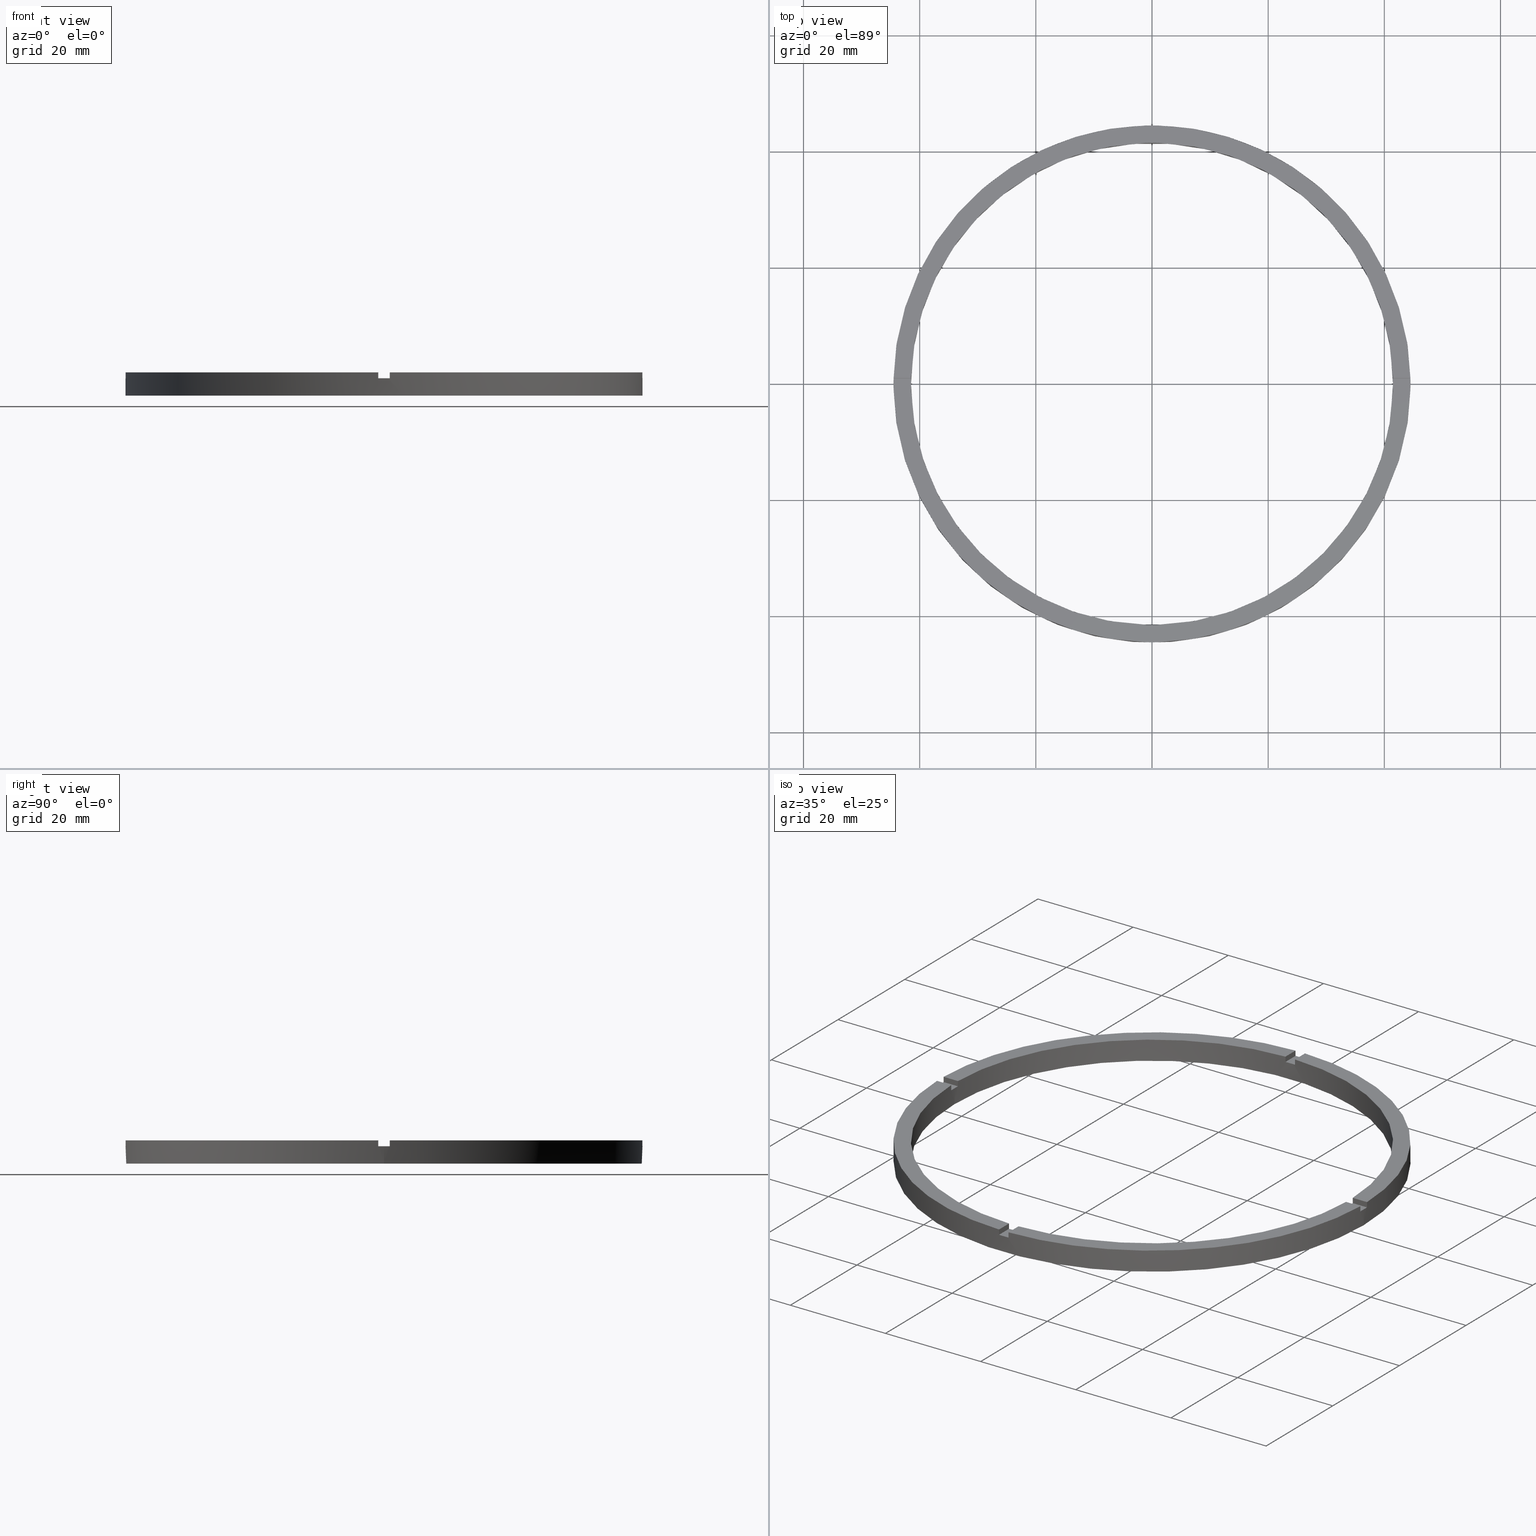
[diagram: canonical four-view strip — front | top / right | iso, engineering-drawing reading convention]
A machine part, canonical four-view strip (front | top / right | iso — engineering-drawing reading convention). The complete STEP part file that produces these views, byte-faithful:
ISO-10303-21;
HEADER;
FILE_DESCRIPTION (( 'STEP AP203' ),
    '1' );
FILE_NAME ('514182.step',
    '2024-12-26T02:45:34',
    ( 'MSI' ),
    ( '' ),
    'SwSTEP 2.0',
    'SolidWorks 2020',
    '' );
FILE_SCHEMA (( 'CONFIG_CONTROL_DESIGN' ));
ENDSEC;

DATA;
#1 = VERTEX_POINT ( 'NONE', #139 ) ;
#2 = DIRECTION ( 'NONE',  ( -0.000000000000000000, 0.000000000000000000, 1.000000000000000000 ) ) ;
#3 = APPLICATION_PROTOCOL_DEFINITION ( 'international standard', 'config_control_design', 1994, #77 ) ;
#4 = VERTEX_POINT ( 'NONE', #213 ) ;
#5 = CARTESIAN_POINT ( 'NONE',  ( 0.000000000000000000, 0.000000000000000000, 4.000000000000000000 ) ) ;
#6 = VERTEX_POINT ( 'NONE', #35 ) ;
#7 = LOCAL_TIME ( 10, 45, 34.00000000000000000, #770 ) ;
#8 = DIRECTION ( 'NONE',  ( -1.301042606982605074E-16, 1.000000000000000000, -0.000000000000000000 ) ) ;
#9 = CARTESIAN_POINT ( 'NONE',  ( -41.48795005781799716, 0.9999999999999709122, 4.000000000000000000 ) ) ;
#10 = SHAPE_DEFINITION_REPRESENTATION ( #99, #195 ) ;
#11 = DIRECTION ( 'NONE',  ( 0.000000000000000000, 0.000000000000000000, 1.000000000000000000 ) ) ;
#12 = CARTESIAN_POINT ( 'NONE',  ( 0.000000000000000000, 0.000000000000000000, 3.000000000000000000 ) ) ;
#13 = ORIENTED_EDGE ( 'NONE', *, *, #57, .T. ) ;
#14 = AXIS2_PLACEMENT_3D ( 'NONE', #317, #290, #296 ) ;
#15 = ORIENTED_EDGE ( 'NONE', *, *, #676, .T. ) ;
#16 = EDGE_CURVE ( 'NONE', #259, #456, #483, .T. ) ;
#17 = ORIENTED_EDGE ( 'NONE', *, *, #575, .F. ) ;
#18 = DIRECTION ( 'NONE',  ( 0.000000000000000000, -0.000000000000000000, 1.000000000000000000 ) ) ;
#19 = ORIENTED_EDGE ( 'NONE', *, *, #730, .F. ) ;
#20 = VERTEX_POINT ( 'NONE', #751 ) ;
#21 = DIRECTION ( 'NONE',  ( 0.000000000000000000, 0.000000000000000000, 1.000000000000000000 ) ) ;
#22 = ORIENTED_EDGE ( 'NONE', *, *, #340, .F. ) ;
#23 = ORIENTED_EDGE ( 'NONE', *, *, #182, .T. ) ;
#24 = ORIENTED_EDGE ( 'NONE', *, *, #649, .T. ) ;
#25 = ORIENTED_EDGE ( 'NONE', *, *, #309, .F. ) ;
#26 = ORIENTED_EDGE ( 'NONE', *, *, #550, .T. ) ;
#27 = EDGE_CURVE ( 'NONE', #663, #259, #484, .T. ) ;
#28 = DIRECTION ( 'NONE',  ( 0.000000000000000000, 0.000000000000000000, 1.000000000000000000 ) ) ;
#29 = EDGE_CURVE ( 'NONE', #156, #6, #763, .T. ) ;
#30 = EDGE_LOOP ( 'NONE', ( #216, #753, #117, #114 ) ) ;
#31 = AXIS2_PLACEMENT_3D ( 'NONE', #757, #39, #606 ) ;
#32 = ADVANCED_FACE ( 'NONE', ( #103 ), #349, .T. ) ;
#33 = ORIENTED_EDGE ( 'NONE', *, *, #36, .F. ) ;
#34 = ORIENTED_EDGE ( 'NONE', *, *, #352, .T. ) ;
#35 = CARTESIAN_POINT ( 'NONE',  ( -41.48795005781799716, -1.000000000000029088, 3.000000000000000000 ) ) ;
#36 = EDGE_CURVE ( 'NONE', #615, #423, #655, .T. ) ;
#37 = AXIS2_PLACEMENT_3D ( 'NONE', #346, #81, #41 ) ;
#38 = CARTESIAN_POINT ( 'NONE',  ( 34.49999999999999289, -1.000000000000156763, 4.000000000000000000 ) ) ;
#39 = DIRECTION ( 'NONE',  ( 0.000000000000000000, 0.000000000000000000, 1.000000000000000000 ) ) ;
#40 = CARTESIAN_POINT ( 'NONE',  ( 0.9999999999999740208, 34.50000000000000000, 3.000000000000000000 ) ) ;
#41 = DIRECTION ( 'NONE',  ( 1.000000000000000000, 0.000000000000000000, -0.000000000000000000 ) ) ;
#42 = ORIENTED_EDGE ( 'NONE', *, *, #782, .T. ) ;
#43 = VERTEX_POINT ( 'NONE', #462 ) ;
#44 = ORIENTED_EDGE ( 'NONE', *, *, #338, .F. ) ;
#45 = ORIENTED_EDGE ( 'NONE', *, *, #27, .T. ) ;
#46 = VERTEX_POINT ( 'NONE', #365 ) ;
#47 = EDGE_CURVE ( 'NONE', #1, #241, #644, .T. ) ;
#48 = CARTESIAN_POINT ( 'NONE',  ( -41.48795005781799716, -1.000000000000029088, 4.000000000000000000 ) ) ;
#49 = ORIENTED_EDGE ( 'NONE', *, *, #91, .T. ) ;
#50 = VERTEX_POINT ( 'NONE', #276 ) ;
#51 = CARTESIAN_POINT ( 'NONE',  ( -41.50000000000000000, 0.000000000000000000, 4.000000000000000000 ) ) ;
#52 = DIRECTION ( 'NONE',  ( -1.000000000000000000, -6.505213034913025371E-17, -0.000000000000000000 ) ) ;
#53 = CARTESIAN_POINT ( 'NONE',  ( -34.50000000000019185, 0.9999999999999722444, 3.000000000000000000 ) ) ;
#54 =( NAMED_UNIT ( * ) PLANE_ANGLE_UNIT ( ) SI_UNIT ( $, .RADIAN. ) );
#55 = VERTEX_POINT ( 'NONE', #48 ) ;
#56 = ORIENTED_EDGE ( 'NONE', *, *, #619, .T. ) ;
#57 = EDGE_CURVE ( 'NONE', #221, #418, #312, .T. ) ;
#58 = CARTESIAN_POINT ( 'NONE',  ( 34.49999999999999289, -1.000000000000156763, 3.000000000000000000 ) ) ;
#59 = EDGE_CURVE ( 'NONE', #615, #221, #144, .T. ) ;
#60 = DATE_TIME_ROLE ( 'classification_date' ) ;
#61 = DIRECTION ( 'NONE',  ( -0.000000000000000000, -0.000000000000000000, -1.000000000000000000 ) ) ;
#62 = EDGE_CURVE ( 'NONE', #299, #156, #679, .T. ) ;
#63 = CARTESIAN_POINT ( 'NONE',  ( 0.9999999999998414602, -41.48795005781800427, 4.000000000000000000 ) ) ;
#64 = CARTESIAN_POINT ( 'NONE',  ( 0.9999999999999740208, 44.48876262608345655, 4.000000000000000000 ) ) ;
#65 = DIRECTION ( 'NONE',  ( -0.000000000000000000, -0.000000000000000000, -1.000000000000000000 ) ) ;
#66 = CARTESIAN_POINT ( 'NONE',  ( 0.000000000000000000, 0.000000000000000000, 3.000000000000000000 ) ) ;
#67 =( GEOMETRIC_REPRESENTATION_CONTEXT ( 3 ) GLOBAL_UNCERTAINTY_ASSIGNED_CONTEXT ( ( #482 ) ) GLOBAL_UNIT_ASSIGNED_CONTEXT ( ( #206, #54, #449 ) ) REPRESENTATION_CONTEXT ( 'NONE', 'WORKASPACE' ) );
#68 = ADVANCED_FACE ( 'NONE', ( #660 ), #263, .F. ) ;
#69 = CARTESIAN_POINT ( 'NONE',  ( 0.000000000000000000, 0.000000000000000000, 0.000000000000000000 ) ) ;
#70 = AXIS2_PLACEMENT_3D ( 'NONE', #95, #28, #229 ) ;
#71 = EDGE_CURVE ( 'NONE', #94, #215, #136, .T. ) ;
#72 = CC_DESIGN_PERSON_AND_ORGANIZATION_ASSIGNMENT ( #779, #214, ( #493 ) ) ;
#73 = CARTESIAN_POINT ( 'NONE',  ( -41.48795005781799716, -1.000000000000029088, 4.000000000000000000 ) ) ;
#74 = DESIGN_CONTEXT ( 'detailed design', #77, 'design' ) ;
#75 = ADVANCED_FACE ( 'NONE', ( #403 ), #687, .T. ) ;
#76 = CARTESIAN_POINT ( 'NONE',  ( 0.9999999999999740208, 34.50000000000000000, 4.000000000000000000 ) ) ;
#77 = APPLICATION_CONTEXT ( 'configuration controlled 3d designs of mechanical parts and assemblies' ) ;
#78 = ADVANCED_FACE ( 'NONE', ( #677 ), #106, .T. ) ;
#79 = DIRECTION ( 'NONE',  ( 1.000000000000000000, 0.000000000000000000, 0.000000000000000000 ) ) ;
#80 = DIRECTION ( 'NONE',  ( -1.000000000000000000, 0.000000000000000000, 0.000000000000000000 ) ) ;
#81 = DIRECTION ( 'NONE',  ( 0.000000000000000000, 0.000000000000000000, 1.000000000000000000 ) ) ;
#82 = CARTESIAN_POINT ( 'NONE',  ( 0.000000000000000000, 0.000000000000000000, 4.000000000000000000 ) ) ;
#83 = DIRECTION ( 'NONE',  ( 1.000000000000000000, 0.000000000000000000, 0.000000000000000000 ) ) ;
#84 = DIRECTION ( 'NONE',  ( -0.000000000000000000, -0.000000000000000000, -1.000000000000000000 ) ) ;
#85 = DIRECTION ( 'NONE',  ( 0.000000000000000000, 0.000000000000000000, 1.000000000000000000 ) ) ;
#86 = DIRECTION ( 'NONE',  ( -0.000000000000000000, -0.000000000000000000, -1.000000000000000000 ) ) ;
#87 = DIRECTION ( 'NONE',  ( -0.000000000000000000, -0.000000000000000000, -1.000000000000000000 ) ) ;
#88 = AXIS2_PLACEMENT_3D ( 'NONE', #58, #773, #501 ) ;
#89 = CARTESIAN_POINT ( 'NONE',  ( 0.000000000000000000, 0.000000000000000000, 4.000000000000000000 ) ) ;
#90 = EDGE_CURVE ( 'NONE', #521, #562, #110, .T. ) ;
#91 = EDGE_CURVE ( 'NONE', #55, #6, #395, .T. ) ;
#92 = CARTESIAN_POINT ( 'NONE',  ( 0.9999999999999740208, 44.48876262608345655, 3.000000000000000000 ) ) ;
#93 = VERTEX_POINT ( 'NONE', #123 ) ;
#94 = VERTEX_POINT ( 'NONE', #430 ) ;
#95 = CARTESIAN_POINT ( 'NONE',  ( 0.000000000000000000, 0.000000000000000000, 4.000000000000000000 ) ) ;
#96 = AXIS2_PLACEMENT_3D ( 'NONE', #603, #305, #345 ) ;
#97 = CARTESIAN_POINT ( 'NONE',  ( -44.48876262608345655, 0.9999999999999703570, 4.000000000000000000 ) ) ;
#98 = DIRECTION ( 'NONE',  ( 0.000000000000000000, 0.000000000000000000, 1.000000000000000000 ) ) ;
#99 = PRODUCT_DEFINITION_SHAPE ( 'NONE', 'NONE',  #347 ) ;
#100 = ORIENTED_EDGE ( 'NONE', *, *, #307, .F. ) ;
#101 = EDGE_CURVE ( 'NONE', #521, #266, #648, .T. ) ;
#102 = CARTESIAN_POINT ( 'NONE',  ( 34.49999999999999289, 0.9999999999998432365, 3.000000000000000000 ) ) ;
#103 = FACE_OUTER_BOUND ( 'NONE', #443, .T. ) ;
#104 = DIRECTION ( 'NONE',  ( 0.000000000000000000, 0.000000000000000000, 1.000000000000000000 ) ) ;
#105 = CIRCLE ( 'NONE', #547, 44.50000000000000711 ) ;
#106 = PLANE ( 'NONE',  #569 ) ;
#107 = ORIENTED_EDGE ( 'NONE', *, *, #461, .F. ) ;
#108 = FACE_OUTER_BOUND ( 'NONE', #620, .T. ) ;
#109 = AXIS2_PLACEMENT_3D ( 'NONE', #69, #104, #598 ) ;
#110 = LINE ( 'NONE', #553, #138 ) ;
#111 = EDGE_CURVE ( 'NONE', #663, #251, #656, .T. ) ;
#112 = ORIENTED_EDGE ( 'NONE', *, *, #332, .F. ) ;
#113 = VECTOR ( 'NONE', #240, 1000.000000000000000 ) ;
#114 = ORIENTED_EDGE ( 'NONE', *, *, #507, .T. ) ;
#115 = ORIENTED_EDGE ( 'NONE', *, *, #636, .F. ) ;
#116 = CIRCLE ( 'NONE', #291, 41.50000000000000000 ) ;
#117 = ORIENTED_EDGE ( 'NONE', *, *, #425, .F. ) ;
#118 = LINE ( 'NONE', #51, #666 ) ;
#119 = LINE ( 'NONE', #588, #135 ) ;
#120 = ORIENTED_EDGE ( 'NONE', *, *, #57, .F. ) ;
#121 = CIRCLE ( 'NONE', #31, 44.50000000000000711 ) ;
#122 = DIRECTION ( 'NONE',  ( 0.000000000000000000, 0.000000000000000000, 1.000000000000000000 ) ) ;
#123 = CARTESIAN_POINT ( 'NONE',  ( -1.000000000000158096, -44.48876262608345655, 4.000000000000000000 ) ) ;
#124 = FACE_OUTER_BOUND ( 'NONE', #499, .T. ) ;
#125 = AXIS2_PLACEMENT_3D ( 'NONE', #716, #11, #621 ) ;
#126 = VECTOR ( 'NONE', #485, 1000.000000000000000 ) ;
#127 = EDGE_CURVE ( 'NONE', #299, #93, #121, .T. ) ;
#128 = LINE ( 'NONE', #273, #388 ) ;
#129 = PLANE ( 'NONE',  #141 ) ;
#130 = ORIENTED_EDGE ( 'NONE', *, *, #182, .F. ) ;
#131 = CYLINDRICAL_SURFACE ( 'NONE', #351, 44.50000000000000711 ) ;
#132 = DIRECTION ( 'NONE',  ( -0.000000000000000000, 0.000000000000000000, 1.000000000000000000 ) ) ;
#133 = CARTESIAN_POINT ( 'NONE',  ( 44.48876262608346366, 0.9999999999998439026, 4.000000000000000000 ) ) ;
#134 = VECTOR ( 'NONE', #638, 1000.000000000000000 ) ;
#135 = VECTOR ( 'NONE', #515, 1000.000000000000000 ) ;
#136 = CIRCLE ( 'NONE', #96, 41.50000000000000000 ) ;
#137 = PLANE ( 'NONE',  #371 ) ;
#138 = VECTOR ( 'NONE', #489, 1000.000000000000000 ) ;
#139 = CARTESIAN_POINT ( 'NONE',  ( -44.48876262608345655, 0.9999999999999703570, 3.000000000000000000 ) ) ;
#140 = DIRECTION ( 'NONE',  ( 0.000000000000000000, 0.000000000000000000, 1.000000000000000000 ) ) ;
#141 = AXIS2_PLACEMENT_3D ( 'NONE', #279, #308, #274 ) ;
#142 = LINE ( 'NONE', #217, #401 ) ;
#143 = VECTOR ( 'NONE', #560, 1000.000000000000000 ) ;
#144 = LINE ( 'NONE', #40, #672 ) ;
#145 = CIRCLE ( 'NONE', #685, 41.50000000000000000 ) ;
#146 = VECTOR ( 'NONE', #580, 1000.000000000000000 ) ;
#147 = VECTOR ( 'NONE', #325, 1000.000000000000000 ) ;
#148 = ORIENTED_EDGE ( 'NONE', *, *, #433, .T. ) ;
#149 = CARTESIAN_POINT ( 'NONE',  ( -1.000000000000158096, -44.48876262608345655, 3.000000000000000000 ) ) ;
#150 = CARTESIAN_POINT ( 'NONE',  ( -44.50000000000000711, 0.000000000000000000, 4.000000000000000000 ) ) ;
#151 = CARTESIAN_POINT ( 'NONE',  ( 34.49999999999999289, 0.9999999999998432365, 3.000000000000000000 ) ) ;
#152 = VECTOR ( 'NONE', #477, 1000.000000000000000 ) ;
#153 = LINE ( 'NONE', #466, #146 ) ;
#154 = CC_DESIGN_APPROVAL ( #597, ( #347 ) ) ;
#155 = CARTESIAN_POINT ( 'NONE',  ( -1.000000000000025979, 34.50000000000000000, 3.000000000000000000 ) ) ;
#156 = VERTEX_POINT ( 'NONE', #752 ) ;
#157 = DIRECTION ( 'NONE',  ( -1.000000000000000000, 0.000000000000000000, 0.000000000000000000 ) ) ;
#158 = ORIENTED_EDGE ( 'NONE', *, *, #766, .F. ) ;
#159 = LINE ( 'NONE', #587, #152 ) ;
#160 = ORIENTED_EDGE ( 'NONE', *, *, #570, .T. ) ;
#161 = FACE_OUTER_BOUND ( 'NONE', #778, .T. ) ;
#162 = DIRECTION ( 'NONE',  ( 0.000000000000000000, 0.000000000000000000, 1.000000000000000000 ) ) ;
#163 = ORIENTED_EDGE ( 'NONE', *, *, #262, .T. ) ;
#164 = FACE_OUTER_BOUND ( 'NONE', #343, .T. ) ;
#165 = AXIS2_PLACEMENT_3D ( 'NONE', #475, #741, #402 ) ;
#166 = FACE_OUTER_BOUND ( 'NONE', #253, .T. ) ;
#167 = CARTESIAN_POINT ( 'NONE',  ( 0.000000000000000000, 0.000000000000000000, 0.000000000000000000 ) ) ;
#168 = ORIENTED_EDGE ( 'NONE', *, *, #247, .F. ) ;
#169 = CIRCLE ( 'NONE', #302, 44.50000000000000711 ) ;
#170 = ORIENTED_EDGE ( 'NONE', *, *, #596, .F. ) ;
#171 = ORIENTED_EDGE ( 'NONE', *, *, #352, .F. ) ;
#172 = FACE_OUTER_BOUND ( 'NONE', #528, .T. ) ;
#173 = ORIENTED_EDGE ( 'NONE', *, *, #570, .F. ) ;
#174 = CIRCLE ( 'NONE', #629, 44.50000000000000711 ) ;
#175 = CYLINDRICAL_SURFACE ( 'NONE', #330, 41.50000000000000000 ) ;
#176 = DIRECTION ( 'NONE',  ( 1.000000000000000000, 0.000000000000000000, 0.000000000000000000 ) ) ;
#177 = CIRCLE ( 'NONE', #344, 44.50000000000000711 ) ;
#178 = VECTOR ( 'NONE', #546, 1000.000000000000000 ) ;
#179 = AXIS2_PLACEMENT_3D ( 'NONE', #311, #755, #373 ) ;
#180 = FACE_OUTER_BOUND ( 'NONE', #494, .T. ) ;
#181 = CARTESIAN_POINT ( 'NONE',  ( 44.50000000000000711, 5.449678256205721981E-15, 0.000000000000000000 ) ) ;
#182 = EDGE_CURVE ( 'NONE', #215, #418, #377, .T. ) ;
#183 = CIRCLE ( 'NONE', #749, 41.50000000000000000 ) ;
#184 = ADVANCED_FACE ( 'NONE', ( #108 ), #640, .T. ) ;
#185 = VECTOR ( 'NONE', #162, 1000.000000000000000 ) ;
#186 = ORIENTED_EDGE ( 'NONE', *, *, #481, .T. ) ;
#187 = EDGE_CURVE ( 'NONE', #695, #50, #400, .T. ) ;
#188 = ORIENTED_EDGE ( 'NONE', *, *, #187, .T. ) ;
#189 = APPROVAL_PERSON_ORGANIZATION ( #737, #304, #464 ) ;
#190 = CALENDAR_DATE ( 2024, 26, 12 ) ;
#191 = COORDINATED_UNIVERSAL_TIME_OFFSET ( 8, 0, .AHEAD. ) ;
#192 = CARTESIAN_POINT ( 'NONE',  ( 0.000000000000000000, 0.000000000000000000, 3.000000000000000000 ) ) ;
#193 = ORIENTED_EDGE ( 'NONE', *, *, #473, .F. ) ;
#194 = CALENDAR_DATE ( 2024, 26, 12 ) ;
#195 = ADVANCED_BREP_SHAPE_REPRESENTATION ( '514182', ( #445, #653 ), #67 ) ;
#196 = VERTEX_POINT ( 'NONE', #329 ) ;
#197 = PERSON_AND_ORGANIZATION ( #210, #740 ) ;
#198 = LOCAL_TIME ( 10, 45, 34.00000000000000000, #191 ) ;
#199 = ORIENTED_EDGE ( 'NONE', *, *, #738, .T. ) ;
#200 = COORDINATED_UNIVERSAL_TIME_OFFSET ( 8, 0, .AHEAD. ) ;
#201 = AXIS2_PLACEMENT_3D ( 'NONE', #589, #226, #529 ) ;
#202 = ORIENTED_EDGE ( 'NONE', *, *, #538, .T. ) ;
#203 = CARTESIAN_POINT ( 'NONE',  ( 41.48795005781799006, -1.000000000000156319, 4.000000000000000000 ) ) ;
#204 = ADVANCED_FACE ( 'NONE', ( #652 ), #131, .T. ) ;
#205 = DIRECTION ( 'NONE',  ( 1.000000000000000000, 1.951563910473907735E-16, -0.000000000000000000 ) ) ;
#206 =( LENGTH_UNIT ( ) NAMED_UNIT ( * ) SI_UNIT ( .MILLI., .METRE. ) );
#207 = CARTESIAN_POINT ( 'NONE',  ( 41.48795005781800427, 0.9999999999998436806, 3.000000000000000000 ) ) ;
#208 = CARTESIAN_POINT ( 'NONE',  ( -44.48876262608345655, -1.000000000000029754, 4.000000000000000000 ) ) ;
#209 = SECURITY_CLASSIFICATION_LEVEL ( 'unclassified' ) ;
#210 = PERSON ( 'δָ��', 'δָ��', 'δָ��', ('δָ��'), ('δָ��'), ('δָ��') ) ;
#211 = EDGE_CURVE ( 'NONE', #20, #43, #682, .T. ) ;
#212 = CC_DESIGN_SECURITY_CLASSIFICATION ( #678, ( #493 ) ) ;
#213 = CARTESIAN_POINT ( 'NONE',  ( -44.48876262608345655, 0.9999999999999703570, 4.000000000000000000 ) ) ;
#214 = PERSON_AND_ORGANIZATION_ROLE ( 'design_supplier' ) ;
#215 = VERTEX_POINT ( 'NONE', #392 ) ;
#216 = ORIENTED_EDGE ( 'NONE', *, *, #16, .F. ) ;
#217 = CARTESIAN_POINT ( 'NONE',  ( -1.000000000000025979, 34.50000000000000000, 4.000000000000000000 ) ) ;
#218 = DIRECTION ( 'NONE',  ( 0.000000000000000000, -0.000000000000000000, 1.000000000000000000 ) ) ;
#219 = AXIS2_PLACEMENT_3D ( 'NONE', #504, #2, #526 ) ;
#220 = ORIENTED_EDGE ( 'NONE', *, *, #440, .F. ) ;
#221 = VERTEX_POINT ( 'NONE', #92 ) ;
#222 = EDGE_LOOP ( 'NONE', ( #705, #426, #524, #513, #650, #657, #363, #257, #24, #390, #255, #260 ) ) ;
#223 = CARTESIAN_POINT ( 'NONE',  ( 44.48876262608346366, 0.9999999999998439026, 4.000000000000000000 ) ) ;
#224 = CARTESIAN_POINT ( 'NONE',  ( -1.000000000000025979, 44.48876262608345655, 4.000000000000000000 ) ) ;
#225 = VECTOR ( 'NONE', #437, 1000.000000000000000 ) ;
#226 = DIRECTION ( 'NONE',  ( 0.000000000000000000, 0.000000000000000000, 1.000000000000000000 ) ) ;
#227 = DIRECTION ( 'NONE',  ( 0.000000000000000000, 0.000000000000000000, 1.000000000000000000 ) ) ;
#228 = PERSON_AND_ORGANIZATION ( #210, #740 ) ;
#229 = DIRECTION ( 'NONE',  ( 1.000000000000000000, 0.000000000000000000, 0.000000000000000000 ) ) ;
#230 = DIRECTION ( 'NONE',  ( -0.000000000000000000, 0.000000000000000000, 1.000000000000000000 ) ) ;
#231 = CARTESIAN_POINT ( 'NONE',  ( 0.9999999999998414602, -41.48795005781800427, 4.000000000000000000 ) ) ;
#232 = CALENDAR_DATE ( 2024, 26, 12 ) ;
#233 = AXIS2_PLACEMENT_3D ( 'NONE', #780, #132, #83 ) ;
#234 = ORIENTED_EDGE ( 'NONE', *, *, #481, .F. ) ;
#235 = COORDINATED_UNIVERSAL_TIME_OFFSET ( 8, 0, .AHEAD. ) ;
#236 = ORIENTED_EDGE ( 'NONE', *, *, #461, .T. ) ;
#237 = PRODUCT_RELATED_PRODUCT_CATEGORY ( 'detail', '', ( #556 ) ) ;
#238 = VERTEX_POINT ( 'NONE', #288 ) ;
#239 = ORIENTED_EDGE ( 'NONE', *, *, #491, .F. ) ;
#240 = DIRECTION ( 'NONE',  ( 0.000000000000000000, 0.000000000000000000, 1.000000000000000000 ) ) ;
#241 = VERTEX_POINT ( 'NONE', #474 ) ;
#242 = DATE_AND_TIME ( #194, #455 ) ;
#243 = ORIENTED_EDGE ( 'NONE', *, *, #36, .T. ) ;
#244 = APPROVAL_DATE_TIME ( #488, #540 ) ;
#245 = EDGE_CURVE ( 'NONE', #562, #646, #376, .T. ) ;
#246 = CLOSED_SHELL ( 'NONE', ( #747, #204, #765, #601, #78, #670, #511, #184, #558, #357, #748, #759, #68, #490, #32, #341, #267, #75, #614, #300, #680 ) ) ;
#247 = EDGE_CURVE ( 'NONE', #708, #50, #385, .T. ) ;
#248 = APPROVAL_PERSON_ORGANIZATION ( #228, #540, #517 ) ;
#249 = EDGE_CURVE ( 'NONE', #641, #708, #105, .T. ) ;
#250 = DIRECTION ( 'NONE',  ( -0.000000000000000000, -0.000000000000000000, -1.000000000000000000 ) ) ;
#251 = VERTEX_POINT ( 'NONE', #360 ) ;
#252 = ORIENTED_EDGE ( 'NONE', *, *, #59, .T. ) ;
#253 = EDGE_LOOP ( 'NONE', ( #163, #15, #17, #699 ) ) ;
#254 = ORIENTED_EDGE ( 'NONE', *, *, #71, .F. ) ;
#255 = ORIENTED_EDGE ( 'NONE', *, *, #321, .T. ) ;
#256 = ORIENTED_EDGE ( 'NONE', *, *, #298, .T. ) ;
#257 = ORIENTED_EDGE ( 'NONE', *, *, #538, .F. ) ;
#258 = DIRECTION ( 'NONE',  ( 1.000000000000000000, 0.000000000000000000, 0.000000000000000000 ) ) ;
#259 = VERTEX_POINT ( 'NONE', #203 ) ;
#260 = ORIENTED_EDGE ( 'NONE', *, *, #27, .F. ) ;
#261 = ORIENTED_EDGE ( 'NONE', *, *, #440, .T. ) ;
#262 = EDGE_CURVE ( 'NONE', #284, #196, #142, .T. ) ;
#263 = PLANE ( 'NONE',  #414 ) ;
#264 = APPROVAL_STATUS ( 'not_yet_approved' ) ;
#265 = DIRECTION ( 'NONE',  ( 0.000000000000000000, 0.000000000000000000, 1.000000000000000000 ) ) ;
#266 = VERTEX_POINT ( 'NONE', #207 ) ;
#267 = ADVANCED_FACE ( 'NONE', ( #124 ), #764, .F. ) ;
#268 = ORIENTED_EDGE ( 'NONE', *, *, #491, .T. ) ;
#269 = PLANE ( 'NONE',  #14 ) ;
#270 = ORIENTED_EDGE ( 'NONE', *, *, #307, .T. ) ;
#271 = EDGE_CURVE ( 'NONE', #251, #456, #119, .T. ) ;
#272 = ORIENTED_EDGE ( 'NONE', *, *, #362, .F. ) ;
#273 = CARTESIAN_POINT ( 'NONE',  ( 0.9999999999998406830, -34.50000000000018474, 4.000000000000000000 ) ) ;
#274 = DIRECTION ( 'NONE',  ( 0.000000000000000000, 0.000000000000000000, -1.000000000000000000 ) ) ;
#275 = CC_DESIGN_APPROVAL ( #304, ( #493 ) ) ;
#276 = CARTESIAN_POINT ( 'NONE',  ( 0.9999999999998414602, -41.48795005781800427, 3.000000000000000000 ) ) ;
#277 = CARTESIAN_POINT ( 'NONE',  ( -41.50000000000000000, 0.000000000000000000, 0.000000000000000000 ) ) ;
#278 = CARTESIAN_POINT ( 'NONE',  ( 0.000000000000000000, 0.000000000000000000, 3.000000000000000000 ) ) ;
#279 = CARTESIAN_POINT ( 'NONE',  ( 0.9999999999999740208, 34.50000000000000000, 3.000000000000000000 ) ) ;
#280 = EDGE_CURVE ( 'NONE', #238, #266, #664, .T. ) ;
#281 = DIRECTION ( 'NONE',  ( -1.000000000000000000, -6.505213034913025371E-17, 0.000000000000000000 ) ) ;
#282 = VERTEX_POINT ( 'NONE', #692 ) ;
#283 = DIRECTION ( 'NONE',  ( -0.000000000000000000, -0.000000000000000000, -1.000000000000000000 ) ) ;
#284 = VERTEX_POINT ( 'NONE', #224 ) ;
#285 = DIRECTION ( 'NONE',  ( -1.000000000000000000, 0.000000000000000000, 0.000000000000000000 ) ) ;
#286 = ORIENTED_EDGE ( 'NONE', *, *, #101, .F. ) ;
#287 = CARTESIAN_POINT ( 'NONE',  ( -34.50000000000019185, 0.9999999999999722444, 3.000000000000000000 ) ) ;
#288 = CARTESIAN_POINT ( 'NONE',  ( 44.48876262608346366, 0.9999999999998439026, 3.000000000000000000 ) ) ;
#289 = ORIENTED_EDGE ( 'NONE', *, *, #271, .F. ) ;
#290 = DIRECTION ( 'NONE',  ( 0.000000000000000000, -0.000000000000000000, 1.000000000000000000 ) ) ;
#291 = AXIS2_PLACEMENT_3D ( 'NONE', #333, #576, #536 ) ;
#292 = ORIENTED_EDGE ( 'NONE', *, *, #473, .T. ) ;
#293 = ORIENTED_EDGE ( 'NONE', *, *, #90, .F. ) ;
#294 = ORIENTED_EDGE ( 'NONE', *, *, #245, .F. ) ;
#295 = DIRECTION ( 'NONE',  ( -1.000000000000000000, -6.505213034913025371E-17, -0.000000000000000000 ) ) ;
#296 = DIRECTION ( 'NONE',  ( 1.000000000000000000, 0.000000000000000000, -0.000000000000000000 ) ) ;
#297 = ORIENTED_EDGE ( 'NONE', *, *, #649, .F. ) ;
#298 = EDGE_CURVE ( 'NONE', #410, #339, #397, .T. ) ;
#299 = VERTEX_POINT ( 'NONE', #609 ) ;
#300 = ADVANCED_FACE ( 'NONE', ( #391 ), #129, .F. ) ;
#301 = CARTESIAN_POINT ( 'NONE',  ( 0.000000000000000000, 0.000000000000000000, 0.000000000000000000 ) ) ;
#302 = AXIS2_PLACEMENT_3D ( 'NONE', #626, #85, #586 ) ;
#303 = CARTESIAN_POINT ( 'NONE',  ( 0.000000000000000000, 0.000000000000000000, 4.000000000000000000 ) ) ;
#304 = APPROVAL ( #315, 'δָ��' ) ;
#305 = DIRECTION ( 'NONE',  ( 0.000000000000000000, 0.000000000000000000, 1.000000000000000000 ) ) ;
#306 = PERSON_AND_ORGANIZATION_ROLE ( 'design_owner' ) ;
#307 = EDGE_CURVE ( 'NONE', #615, #215, #683, .T. ) ;
#308 = DIRECTION ( 'NONE',  ( 1.000000000000000000, -0.000000000000000000, 0.000000000000000000 ) ) ;
#309 = EDGE_CURVE ( 'NONE', #55, #611, #647, .T. ) ;
#310 = DIRECTION ( 'NONE',  ( -0.000000000000000000, -0.000000000000000000, -1.000000000000000000 ) ) ;
#311 = CARTESIAN_POINT ( 'NONE',  ( 0.000000000000000000, 0.000000000000000000, 4.000000000000000000 ) ) ;
#312 = LINE ( 'NONE', #318, #675 ) ;
#313 = EDGE_CURVE ( 'NONE', #46, #6, #145, .T. ) ;
#314 = CARTESIAN_POINT ( 'NONE',  ( 0.9999999999998406830, -34.50000000000018474, 3.000000000000000000 ) ) ;
#315 = APPROVAL_STATUS ( 'not_yet_approved' ) ;
#316 = DIRECTION ( 'NONE',  ( -0.000000000000000000, -0.000000000000000000, -1.000000000000000000 ) ) ;
#317 = CARTESIAN_POINT ( 'NONE',  ( 0.000000000000000000, 0.000000000000000000, 3.000000000000000000 ) ) ;
#318 = CARTESIAN_POINT ( 'NONE',  ( 0.9999999999999740208, 44.48876262608345655, 4.000000000000000000 ) ) ;
#319 = CARTESIAN_POINT ( 'NONE',  ( -1.000000000000025979, 34.50000000000000000, 3.000000000000000000 ) ) ;
#320 = CARTESIAN_POINT ( 'NONE',  ( 0.000000000000000000, 0.000000000000000000, 4.000000000000000000 ) ) ;
#321 = EDGE_CURVE ( 'NONE', #695, #259, #673, .T. ) ;
#322 = DIRECTION ( 'NONE',  ( 0.000000000000000000, 0.000000000000000000, 1.000000000000000000 ) ) ;
#323 = CARTESIAN_POINT ( 'NONE',  ( 0.000000000000000000, 0.000000000000000000, 3.000000000000000000 ) ) ;
#324 = PERSON_AND_ORGANIZATION_ROLE ( 'creator' ) ;
#325 = DIRECTION ( 'NONE',  ( 1.301042606982605074E-16, -1.000000000000000000, 0.000000000000000000 ) ) ;
#326 = CARTESIAN_POINT ( 'NONE',  ( 0.000000000000000000, 0.000000000000000000, 3.000000000000000000 ) ) ;
#327 = CARTESIAN_POINT ( 'NONE',  ( 44.50000000000000711, 5.449678256205721981E-15, 3.000000000000000000 ) ) ;
#328 = CARTESIAN_POINT ( 'NONE',  ( 0.000000000000000000, 0.000000000000000000, 3.000000000000000000 ) ) ;
#329 = CARTESIAN_POINT ( 'NONE',  ( -1.000000000000025979, 41.48795005781799716, 4.000000000000000000 ) ) ;
#330 = AXIS2_PLACEMENT_3D ( 'NONE', #5, #61, #285 ) ;
#331 = DIRECTION ( 'NONE',  ( -0.000000000000000000, -1.000000000000000000, -0.000000000000000000 ) ) ;
#332 = EDGE_CURVE ( 'NONE', #465, #94, #681, .T. ) ;
#333 = CARTESIAN_POINT ( 'NONE',  ( 0.000000000000000000, 0.000000000000000000, 3.000000000000000000 ) ) ;
#334 = CARTESIAN_POINT ( 'NONE',  ( 41.48795005781800427, 0.9999999999998436806, 4.000000000000000000 ) ) ;
#335 = DIRECTION ( 'NONE',  ( 0.000000000000000000, 0.000000000000000000, 1.000000000000000000 ) ) ;
#336 = DIRECTION ( 'NONE',  ( -0.000000000000000000, -0.000000000000000000, -1.000000000000000000 ) ) ;
#337 = AXIS2_PLACEMENT_3D ( 'NONE', #102, #590, #281 ) ;
#338 = EDGE_CURVE ( 'NONE', #1, #4, #358, .T. ) ;
#339 = VERTEX_POINT ( 'NONE', #181 ) ;
#340 = EDGE_CURVE ( 'NONE', #545, #339, #369, .T. ) ;
#341 = ADVANCED_FACE ( 'NONE', ( #668 ), #745, .F. ) ;
#342 = EDGE_LOOP ( 'NONE', ( #26, #495 ) ) ;
#343 = EDGE_LOOP ( 'NONE', ( #130, #254, #112, #523 ) ) ;
#344 = AXIS2_PLACEMENT_3D ( 'NONE', #510, #579, #762 ) ;
#345 = DIRECTION ( 'NONE',  ( 1.000000000000000000, 0.000000000000000000, 0.000000000000000000 ) ) ;
#346 = CARTESIAN_POINT ( 'NONE',  ( 0.000000000000000000, 0.000000000000000000, 3.000000000000000000 ) ) ;
#347 = PRODUCT_DEFINITION ( 'δ֪', '', #493, #74 ) ;
#348 = ORIENTED_EDGE ( 'NONE', *, *, #694, .F. ) ;
#349 = PLANE ( 'NONE',  #219 ) ;
#350 = AXIS2_PLACEMENT_3D ( 'NONE', #301, #409, #632 ) ;
#351 = AXIS2_PLACEMENT_3D ( 'NONE', #89, #65, #157 ) ;
#352 = EDGE_CURVE ( 'NONE', #221, #282, #386, .T. ) ;
#353 = DIRECTION ( 'NONE',  ( 1.000000000000000000, 0.000000000000000000, -0.000000000000000000 ) ) ;
#354 = DIRECTION ( 'NONE',  ( 1.000000000000000000, 1.301042606982605074E-16, 0.000000000000000000 ) ) ;
#355 = APPROVAL_STATUS ( 'not_yet_approved' ) ;
#356 = CC_DESIGN_PERSON_AND_ORGANIZATION_ASSIGNMENT ( #503, #324, ( #493 ) ) ;
#357 = ADVANCED_FACE ( 'NONE', ( #651 ), #137, .F. ) ;
#358 = LINE ( 'NONE', #97, #113 ) ;
#359 = ORIENTED_EDGE ( 'NONE', *, *, #47, .F. ) ;
#360 = CARTESIAN_POINT ( 'NONE',  ( 44.48876262608345655, -1.000000000000156097, 3.000000000000000000 ) ) ;
#361 = VECTOR ( 'NONE', #283, 1000.000000000000000 ) ;
#362 = EDGE_CURVE ( 'NONE', #663, #521, #116, .T. ) ;
#363 = ORIENTED_EDGE ( 'NONE', *, *, #309, .T. ) ;
#364 = CARTESIAN_POINT ( 'NONE',  ( 0.000000000000000000, 0.000000000000000000, 4.000000000000000000 ) ) ;
#365 = CARTESIAN_POINT ( 'NONE',  ( -41.50000000000000000, 0.000000000000000000, 3.000000000000000000 ) ) ;
#366 = VECTOR ( 'NONE', #295, 1000.000000000000000 ) ;
#367 = MECHANICAL_CONTEXT ( 'NONE', #688, 'mechanical' ) ;
#368 = VERTEX_POINT ( 'NONE', #627 ) ;
#369 = LINE ( 'NONE', #599, #126 ) ;
#370 = CARTESIAN_POINT ( 'NONE',  ( 0.9999999999998419042, -44.48876262608346366, 4.000000000000000000 ) ) ;
#371 = AXIS2_PLACEMENT_3D ( 'NONE', #725, #514, #734 ) ;
#372 = DIRECTION ( 'NONE',  ( 0.000000000000000000, 0.000000000000000000, 1.000000000000000000 ) ) ;
#373 = DIRECTION ( 'NONE',  ( 1.000000000000000000, 0.000000000000000000, 0.000000000000000000 ) ) ;
#374 = ORIENTED_EDGE ( 'NONE', *, *, #633, .T. ) ;
#375 = CIRCLE ( 'NONE', #125, 44.50000000000000711 ) ;
#376 = CIRCLE ( 'NONE', #535, 41.50000000000000000 ) ;
#377 = LINE ( 'NONE', #76, #684 ) ;
#378 = CARTESIAN_POINT ( 'NONE',  ( -34.50000000000019185, 0.9999999999999722444, 4.000000000000000000 ) ) ;
#379 = EDGE_LOOP ( 'NONE', ( #544, #270, #23, #120 ) ) ;
#380 = PLANE ( 'NONE',  #617 ) ;
#381 = CARTESIAN_POINT ( 'NONE',  ( -44.50000000000000711, 0.000000000000000000, 0.000000000000000000 ) ) ;
#382 = EDGE_CURVE ( 'NONE', #545, #238, #375, .T. ) ;
#383 = EDGE_LOOP ( 'NONE', ( #551, #554, #731, #158 ) ) ;
#384 = DIRECTION ( 'NONE',  ( 1.000000000000000000, 0.000000000000000000, 0.000000000000000000 ) ) ;
#385 = LINE ( 'NONE', #591, #134 ) ;
#386 = CIRCLE ( 'NONE', #605, 44.50000000000000711 ) ;
#387 = ORIENTED_EDGE ( 'NONE', *, *, #636, .T. ) ;
#388 = VECTOR ( 'NONE', #8, 1000.000000000000000 ) ;
#389 = PLANE ( 'NONE',  #165 ) ;
#390 = ORIENTED_EDGE ( 'NONE', *, *, #187, .F. ) ;
#391 = FACE_OUTER_BOUND ( 'NONE', #379, .T. ) ;
#392 = CARTESIAN_POINT ( 'NONE',  ( 0.9999999999999740208, 41.48795005781799716, 4.000000000000000000 ) ) ;
#393 = VECTOR ( 'NONE', #577, 1000.000000000000000 ) ;
#394 = VECTOR ( 'NONE', #227, 1000.000000000000000 ) ;
#395 = LINE ( 'NONE', #73, #642 ) ;
#396 = DIRECTION ( 'NONE',  ( -1.000000000000000000, -1.951563910473907735E-16, 0.000000000000000000 ) ) ;
#397 = CIRCLE ( 'NONE', #476, 44.50000000000000711 ) ;
#398 = CARTESIAN_POINT ( 'NONE',  ( 0.9999999999998419042, -44.48876262608346366, 3.000000000000000000 ) ) ;
#399 = AXIS2_PLACEMENT_3D ( 'NONE', #53, #573, #767 ) ;
#400 = LINE ( 'NONE', #63, #361 ) ;
#401 = VECTOR ( 'NONE', #459, 1000.000000000000000 ) ;
#402 = DIRECTION ( 'NONE',  ( 1.000000000000000000, 0.000000000000000000, -0.000000000000000000 ) ) ;
#403 = FACE_OUTER_BOUND ( 'NONE', #500, .T. ) ;
#404 = CC_DESIGN_DATE_AND_TIME_ASSIGNMENT ( #783, #60, ( #678 ) ) ;
#405 = FACE_OUTER_BOUND ( 'NONE', #407, .T. ) ;
#406 = VECTOR ( 'NONE', #87, 1000.000000000000000 ) ;
#407 = EDGE_LOOP ( 'NONE', ( #739, #563, #160, #44 ) ) ;
#408 = VECTOR ( 'NONE', #335, 1000.000000000000000 ) ;
#409 = DIRECTION ( 'NONE',  ( 0.000000000000000000, 0.000000000000000000, 1.000000000000000000 ) ) ;
#410 = VERTEX_POINT ( 'NONE', #381 ) ;
#411 = FACE_OUTER_BOUND ( 'NONE', #520, .T. ) ;
#412 = ORIENTED_EDGE ( 'NONE', *, *, #16, .T. ) ;
#413 = ORIENTED_EDGE ( 'NONE', *, *, #247, .T. ) ;
#414 = AXIS2_PLACEMENT_3D ( 'NONE', #314, #354, #769 ) ;
#415 = ORIENTED_EDGE ( 'NONE', *, *, #29, .F. ) ;
#416 = EDGE_CURVE ( 'NONE', #46, #646, #118, .T. ) ;
#417 = VECTOR ( 'NONE', #541, 1000.000000000000000 ) ;
#418 = VERTEX_POINT ( 'NONE', #64 ) ;
#419 = CC_DESIGN_PERSON_AND_ORGANIZATION_ASSIGNMENT ( #197, #610, ( #347 ) ) ;
#420 = VECTOR ( 'NONE', #396, 1000.000000000000000 ) ;
#421 = CARTESIAN_POINT ( 'NONE',  ( 0.000000000000000000, 0.000000000000000000, 3.000000000000000000 ) ) ;
#422 = LINE ( 'NONE', #150, #721 ) ;
#423 = VERTEX_POINT ( 'NONE', #472 ) ;
#424 = LINE ( 'NONE', #746, #185 ) ;
#425 = EDGE_CURVE ( 'NONE', #618, #695, #128, .T. ) ;
#426 = ORIENTED_EDGE ( 'NONE', *, *, #90, .T. ) ;
#427 = LINE ( 'NONE', #585, #408 ) ;
#428 = ORIENTED_EDGE ( 'NONE', *, *, #340, .T. ) ;
#429 = LINE ( 'NONE', #334, #444 ) ;
#430 = CARTESIAN_POINT ( 'NONE',  ( 41.48795005781800427, 0.9999999999998436806, 4.000000000000000000 ) ) ;
#431 = ORIENTED_EDGE ( 'NONE', *, *, #730, .T. ) ;
#432 = FACE_OUTER_BOUND ( 'NONE', #532, .T. ) ;
#433 = EDGE_CURVE ( 'NONE', #20, #1, #709, .T. ) ;
#434 = CIRCLE ( 'NONE', #201, 44.50000000000000711 ) ;
#435 = VECTOR ( 'NONE', #768, 1000.000000000000000 ) ;
#436 = ORIENTED_EDGE ( 'NONE', *, *, #382, .T. ) ;
#437 = DIRECTION ( 'NONE',  ( 1.000000000000000000, 6.505213034913025371E-17, 0.000000000000000000 ) ) ;
#438 = FACE_OUTER_BOUND ( 'NONE', #669, .T. ) ;
#439 = DATE_TIME_ROLE ( 'creation_date' ) ;
#440 = EDGE_CURVE ( 'NONE', #284, #4, #174, .T. ) ;
#441 = ORIENTED_EDGE ( 'NONE', *, *, #249, .T. ) ;
#442 = LINE ( 'NONE', #522, #147 ) ;
#443 = EDGE_LOOP ( 'NONE', ( #441, #413, #297, #56 ) ) ;
#444 = VECTOR ( 'NONE', #336, 1000.000000000000000 ) ;
#445 = MANIFOLD_SOLID_BREP ( '�г�-����1', #246 ) ;
#446 = LINE ( 'NONE', #722, #417 ) ;
#447 = DIRECTION ( 'NONE',  ( 0.000000000000000000, 1.000000000000000000, 0.000000000000000000 ) ) ;
#448 = FACE_OUTER_BOUND ( 'NONE', #222, .T. ) ;
#449 =( NAMED_UNIT ( * ) SI_UNIT ( $, .STERADIAN. ) SOLID_ANGLE_UNIT ( ) );
#450 = APPROVAL_PERSON_ORGANIZATION ( #743, #597, #630 ) ;
#451 = DIRECTION ( 'NONE',  ( 0.000000000000000000, 0.000000000000000000, 1.000000000000000000 ) ) ;
#452 = DIRECTION ( 'NONE',  ( 0.000000000000000000, 0.000000000000000000, 1.000000000000000000 ) ) ;
#453 = COORDINATED_UNIVERSAL_TIME_OFFSET ( 8, 0, .AHEAD. ) ;
#454 = DIRECTION ( 'NONE',  ( 0.000000000000000000, 0.000000000000000000, 1.000000000000000000 ) ) ;
#455 = LOCAL_TIME ( 10, 45, 34.00000000000000000, #453 ) ;
#456 = VERTEX_POINT ( 'NONE', #581 ) ;
#457 = CALENDAR_DATE ( 2024, 26, 12 ) ;
#458 = DIRECTION ( 'NONE',  ( 1.000000000000000000, 0.000000000000000000, 0.000000000000000000 ) ) ;
#459 = DIRECTION ( 'NONE',  ( -0.000000000000000000, -1.000000000000000000, -0.000000000000000000 ) ) ;
#460 = APPROVAL_DATE_TIME ( #732, #597 ) ;
#461 = EDGE_CURVE ( 'NONE', #241, #410, #422, .T. ) ;
#462 = CARTESIAN_POINT ( 'NONE',  ( -41.48795005781799716, 0.9999999999999709122, 4.000000000000000000 ) ) ;
#463 = LOCAL_TIME ( 10, 45, 34.00000000000000000, #200 ) ;
#464 = APPROVAL_ROLE ( '' ) ;
#465 = VERTEX_POINT ( 'NONE', #223 ) ;
#466 = CARTESIAN_POINT ( 'NONE',  ( 0.9999999999998419042, -44.48876262608346366, 4.000000000000000000 ) ) ;
#467 = DIRECTION ( 'NONE',  ( 1.000000000000000000, 0.000000000000000000, 0.000000000000000000 ) ) ;
#468 = PLANE ( 'NONE',  #561 ) ;
#469 = DIRECTION ( 'NONE',  ( -1.000000000000000000, -1.951563910473907735E-16, 0.000000000000000000 ) ) ;
#470 = DIRECTION ( 'NONE',  ( 0.000000000000000000, 0.000000000000000000, 1.000000000000000000 ) ) ;
#471 = AXIS2_PLACEMENT_3D ( 'NONE', #623, #711, #775 ) ;
#472 = CARTESIAN_POINT ( 'NONE',  ( -1.000000000000025979, 41.48795005781799716, 3.000000000000000000 ) ) ;
#473 = EDGE_CURVE ( 'NONE', #20, #46, #690, .T. ) ;
#474 = CARTESIAN_POINT ( 'NONE',  ( -44.50000000000000711, 0.000000000000000000, 3.000000000000000000 ) ) ;
#475 = CARTESIAN_POINT ( 'NONE',  ( 0.000000000000000000, 0.000000000000000000, 4.000000000000000000 ) ) ;
#476 = AXIS2_PLACEMENT_3D ( 'NONE', #571, #565, #79 ) ;
#477 = DIRECTION ( 'NONE',  ( 1.000000000000000000, 1.951563910473907735E-16, -0.000000000000000000 ) ) ;
#478 = CARTESIAN_POINT ( 'NONE',  ( 0.000000000000000000, 0.000000000000000000, 4.000000000000000000 ) ) ;
#479 = ORIENTED_EDGE ( 'NONE', *, *, #298, .F. ) ;
#480 = CARTESIAN_POINT ( 'NONE',  ( -1.000000000000025979, 44.48876262608345655, 4.000000000000000000 ) ) ;
#481 = EDGE_CURVE ( 'NONE', #299, #55, #159, .T. ) ;
#482 = UNCERTAINTY_MEASURE_WITH_UNIT (LENGTH_MEASURE( 1.000000000000000082E-05 ), #206, 'distance_accuracy_value', 'NONE');
#483 = LINE ( 'NONE', #38, #225 ) ;
#484 = LINE ( 'NONE', #582, #486 ) ;
#485 = DIRECTION ( 'NONE',  ( -0.000000000000000000, -0.000000000000000000, -1.000000000000000000 ) ) ;
#486 = VECTOR ( 'NONE', #122, 1000.000000000000000 ) ;
#487 = DIRECTION ( 'NONE',  ( 1.301042606982605074E-16, -1.000000000000000000, 0.000000000000000000 ) ) ;
#488 = DATE_AND_TIME ( #771, #7 ) ;
#489 = DIRECTION ( 'NONE',  ( -0.000000000000000000, -0.000000000000000000, -1.000000000000000000 ) ) ;
#490 = ADVANCED_FACE ( 'NONE', ( #411 ), #492, .F. ) ;
#491 = EDGE_CURVE ( 'NONE', #611, #93, #446, .T. ) ;
#492 = PLANE ( 'NONE',  #567 ) ;
#493 = PRODUCT_DEFINITION_FORMATION_WITH_SPECIFIED_SOURCE ( '�κ�', '', #556, .NOT_KNOWN. ) ;
#494 = EDGE_LOOP ( 'NONE', ( #239, #25, #234, #756 ) ) ;
#495 = ORIENTED_EDGE ( 'NONE', *, *, #245, .T. ) ;
#496 = DIRECTION ( 'NONE',  ( 1.000000000000000000, 0.000000000000000000, -0.000000000000000000 ) ) ;
#497 = ORIENTED_EDGE ( 'NONE', *, *, #676, .F. ) ;
#498 = PERSON_AND_ORGANIZATION ( #210, #740 ) ;
#499 = EDGE_LOOP ( 'NONE', ( #552, #45, #412, #289 ) ) ;
#500 = EDGE_LOOP ( 'NONE', ( #42, #436, #624, #286, #272, #543 ) ) ;
#501 = DIRECTION ( 'NONE',  ( 1.000000000000000000, 6.505213034913025371E-17, 0.000000000000000000 ) ) ;
#502 = ORIENTED_EDGE ( 'NONE', *, *, #507, .F. ) ;
#503 = PERSON_AND_ORGANIZATION ( #210, #740 ) ;
#504 = CARTESIAN_POINT ( 'NONE',  ( 0.000000000000000000, 0.000000000000000000, 3.000000000000000000 ) ) ;
#505 = CARTESIAN_POINT ( 'NONE',  ( 0.000000000000000000, 0.000000000000000000, 4.000000000000000000 ) ) ;
#506 = EDGE_LOOP ( 'NONE', ( #516, #188, #168, #689 ) ) ;
#507 = EDGE_CURVE ( 'NONE', #618, #456, #434, .T. ) ;
#508 = PLANE ( 'NONE',  #534 ) ;
#509 = DIRECTION ( 'NONE',  ( 0.000000000000000000, 0.000000000000000000, 1.000000000000000000 ) ) ;
#510 = CARTESIAN_POINT ( 'NONE',  ( 0.000000000000000000, 0.000000000000000000, 3.000000000000000000 ) ) ;
#511 = ADVANCED_FACE ( 'NONE', ( #438, #727 ), #643, .F. ) ;
#512 = ORIENTED_EDGE ( 'NONE', *, *, #575, .T. ) ;
#513 = ORIENTED_EDGE ( 'NONE', *, *, #416, .F. ) ;
#514 = DIRECTION ( 'NONE',  ( 1.951563910473907735E-16, -1.000000000000000000, 0.000000000000000000 ) ) ;
#515 = DIRECTION ( 'NONE',  ( 0.000000000000000000, 0.000000000000000000, 1.000000000000000000 ) ) ;
#516 = ORIENTED_EDGE ( 'NONE', *, *, #425, .T. ) ;
#517 = APPROVAL_ROLE ( '' ) ;
#518 = ORIENTED_EDGE ( 'NONE', *, *, #71, .T. ) ;
#519 = EDGE_LOOP ( 'NONE', ( #186, #49, #415, #703 ) ) ;
#520 = EDGE_LOOP ( 'NONE', ( #539, #202, #268, #170 ) ) ;
#521 = VERTEX_POINT ( 'NONE', #661 ) ;
#522 = CARTESIAN_POINT ( 'NONE',  ( -1.000000000000159428, -34.50000000000018474, 3.000000000000000000 ) ) ;
#523 = ORIENTED_EDGE ( 'NONE', *, *, #549, .T. ) ;
#524 = ORIENTED_EDGE ( 'NONE', *, *, #550, .F. ) ;
#525 = ORIENTED_EDGE ( 'NONE', *, *, #127, .F. ) ;
#526 = DIRECTION ( 'NONE',  ( 1.000000000000000000, 0.000000000000000000, 0.000000000000000000 ) ) ;
#527 = CARTESIAN_POINT ( 'NONE',  ( 0.000000000000000000, 0.000000000000000000, 4.000000000000000000 ) ) ;
#528 = EDGE_LOOP ( 'NONE', ( #712, #199, #559, #542, #193, #148 ) ) ;
#529 = DIRECTION ( 'NONE',  ( 1.000000000000000000, 0.000000000000000000, 0.000000000000000000 ) ) ;
#530 = ORIENTED_EDGE ( 'NONE', *, *, #338, .T. ) ;
#531 = DIRECTION ( 'NONE',  ( -1.000000000000000000, 0.000000000000000000, 0.000000000000000000 ) ) ;
#532 = EDGE_LOOP ( 'NONE', ( #665, #261, #173, #19 ) ) ;
#533 = DIRECTION ( 'NONE',  ( 1.000000000000000000, 0.000000000000000000, 0.000000000000000000 ) ) ;
#534 = AXIS2_PLACEMENT_3D ( 'NONE', #364, #265, #353 ) ;
#535 = AXIS2_PLACEMENT_3D ( 'NONE', #167, #537, #735 ) ;
#536 = DIRECTION ( 'NONE',  ( 1.000000000000000000, 0.000000000000000000, 0.000000000000000000 ) ) ;
#537 = DIRECTION ( 'NONE',  ( 0.000000000000000000, 0.000000000000000000, 1.000000000000000000 ) ) ;
#538 = EDGE_CURVE ( 'NONE', #368, #611, #424, .T. ) ;
#539 = ORIENTED_EDGE ( 'NONE', *, *, #619, .F. ) ;
#540 = APPROVAL ( #355, 'δָ��' ) ;
#541 = DIRECTION ( 'NONE',  ( 1.301042606982605074E-16, -1.000000000000000000, 0.000000000000000000 ) ) ;
#542 = ORIENTED_EDGE ( 'NONE', *, *, #313, .F. ) ;
#543 = ORIENTED_EDGE ( 'NONE', *, *, #111, .T. ) ;
#544 = ORIENTED_EDGE ( 'NONE', *, *, #59, .F. ) ;
#545 = VERTEX_POINT ( 'NONE', #327 ) ;
#546 = DIRECTION ( 'NONE',  ( -0.000000000000000000, -0.000000000000000000, -1.000000000000000000 ) ) ;
#547 = AXIS2_PLACEMENT_3D ( 'NONE', #12, #230, #726 ) ;
#548 = CARTESIAN_POINT ( 'NONE',  ( 34.49999999999999289, 0.9999999999998432365, 4.000000000000000000 ) ) ;
#549 = EDGE_CURVE ( 'NONE', #465, #418, #713, .T. ) ;
#550 = EDGE_CURVE ( 'NONE', #646, #562, #717, .T. ) ;
#551 = ORIENTED_EDGE ( 'NONE', *, *, #332, .T. ) ;
#552 = ORIENTED_EDGE ( 'NONE', *, *, #111, .F. ) ;
#553 = CARTESIAN_POINT ( 'NONE',  ( 41.50000000000000000, 5.082284216461515748E-15, 4.000000000000000000 ) ) ;
#554 = ORIENTED_EDGE ( 'NONE', *, *, #694, .T. ) ;
#555 = CARTESIAN_POINT ( 'NONE',  ( -1.000000000000159428, -34.50000000000018474, 3.000000000000000000 ) ) ;
#556 = PRODUCT ( '514182', '514182', '', ( #367 ) ) ;
#557 = EDGE_LOOP ( 'NONE', ( #34, #512, #33, #252 ) ) ;
#558 = ADVANCED_FACE ( 'NONE', ( #161 ), #175, .F. ) ;
#559 = ORIENTED_EDGE ( 'NONE', *, *, #29, .T. ) ;
#560 = DIRECTION ( 'NONE',  ( 1.000000000000000000, 6.505213034913025371E-17, 0.000000000000000000 ) ) ;
#561 = AXIS2_PLACEMENT_3D ( 'NONE', #527, #719, #777 ) ;
#562 = VERTEX_POINT ( 'NONE', #592 ) ;
#563 = ORIENTED_EDGE ( 'NONE', *, *, #211, .T. ) ;
#564 = CARTESIAN_POINT ( 'NONE',  ( 34.49999999999999289, -1.000000000000156763, 3.000000000000000000 ) ) ;
#565 = DIRECTION ( 'NONE',  ( 0.000000000000000000, 0.000000000000000000, 1.000000000000000000 ) ) ;
#566 = DIRECTION ( 'NONE',  ( 1.000000000000000000, 0.000000000000000000, 0.000000000000000000 ) ) ;
#567 = AXIS2_PLACEMENT_3D ( 'NONE', #555, #604, #487 ) ;
#568 = CARTESIAN_POINT ( 'NONE',  ( 0.000000000000000000, 0.000000000000000000, 0.000000000000000000 ) ) ;
#569 = AXIS2_PLACEMENT_3D ( 'NONE', #303, #140, #496 ) ;
#570 = EDGE_CURVE ( 'NONE', #43, #4, #706, .T. ) ;
#571 = CARTESIAN_POINT ( 'NONE',  ( 0.000000000000000000, 0.000000000000000000, 0.000000000000000000 ) ) ;
#572 = CC_DESIGN_DATE_AND_TIME_ASSIGNMENT ( #728, #439, ( #347 ) ) ;
#573 = DIRECTION ( 'NONE',  ( -1.951563910473907735E-16, 1.000000000000000000, 0.000000000000000000 ) ) ;
#574 = PERSON_AND_ORGANIZATION_ROLE ( 'classification_officer' ) ;
#575 = EDGE_CURVE ( 'NONE', #282, #423, #697, .T. ) ;
#576 = DIRECTION ( 'NONE',  ( 0.000000000000000000, 0.000000000000000000, 1.000000000000000000 ) ) ;
#577 = DIRECTION ( 'NONE',  ( 0.000000000000000000, 0.000000000000000000, 1.000000000000000000 ) ) ;
#578 = AXIS2_PLACEMENT_3D ( 'NONE', #323, #218, #583 ) ;
#579 = DIRECTION ( 'NONE',  ( 0.000000000000000000, 0.000000000000000000, 1.000000000000000000 ) ) ;
#580 = DIRECTION ( 'NONE',  ( -0.000000000000000000, -0.000000000000000000, -1.000000000000000000 ) ) ;
#581 = CARTESIAN_POINT ( 'NONE',  ( 44.48876262608345655, -1.000000000000156097, 4.000000000000000000 ) ) ;
#582 = CARTESIAN_POINT ( 'NONE',  ( 41.48795005781799006, -1.000000000000156319, 4.000000000000000000 ) ) ;
#583 = DIRECTION ( 'NONE',  ( 1.000000000000000000, 0.000000000000000000, 0.000000000000000000 ) ) ;
#584 = APPLICATION_PROTOCOL_DEFINITION ( 'international standard', 'config_control_design', 1994, #688 ) ;
#585 = CARTESIAN_POINT ( 'NONE',  ( -1.000000000000158096, -44.48876262608345655, 4.000000000000000000 ) ) ;
#586 = DIRECTION ( 'NONE',  ( 1.000000000000000000, 0.000000000000000000, 0.000000000000000000 ) ) ;
#587 = CARTESIAN_POINT ( 'NONE',  ( -34.50000000000019185, -1.000000000000027756, 4.000000000000000000 ) ) ;
#588 = CARTESIAN_POINT ( 'NONE',  ( 44.48876262608345655, -1.000000000000156097, 4.000000000000000000 ) ) ;
#589 = CARTESIAN_POINT ( 'NONE',  ( 0.000000000000000000, 0.000000000000000000, 4.000000000000000000 ) ) ;
#590 = DIRECTION ( 'NONE',  ( -6.505213034913025371E-17, 1.000000000000000000, 0.000000000000000000 ) ) ;
#591 = CARTESIAN_POINT ( 'NONE',  ( 0.9999999999998406830, -34.50000000000018474, 3.000000000000000000 ) ) ;
#592 = CARTESIAN_POINT ( 'NONE',  ( 41.50000000000000000, 5.082284216461515748E-15, 0.000000000000000000 ) ) ;
#593 = AXIS2_PLACEMENT_3D ( 'NONE', #622, #316, #710 ) ;
#594 = DIRECTION ( 'NONE',  ( 0.000000000000000000, 0.000000000000000000, 1.000000000000000000 ) ) ;
#595 = DIRECTION ( 'NONE',  ( 1.000000000000000000, 0.000000000000000000, 0.000000000000000000 ) ) ;
#596 = EDGE_CURVE ( 'NONE', #641, #93, #427, .T. ) ;
#597 = APPROVAL ( #264, 'δָ��' ) ;
#598 = DIRECTION ( 'NONE',  ( 1.000000000000000000, 0.000000000000000000, 0.000000000000000000 ) ) ;
#599 = CARTESIAN_POINT ( 'NONE',  ( 44.50000000000000711, 5.449678256205721981E-15, 4.000000000000000000 ) ) ;
#600 = AXIS2_PLACEMENT_3D ( 'NONE', #278, #594, #533 ) ;
#601 = ADVANCED_FACE ( 'NONE', ( #164 ), #389, .T. ) ;
#602 = EDGE_CURVE ( 'NONE', #284, #282, #704, .T. ) ;
#603 = CARTESIAN_POINT ( 'NONE',  ( 0.000000000000000000, 0.000000000000000000, 4.000000000000000000 ) ) ;
#604 = DIRECTION ( 'NONE',  ( -1.000000000000000000, -1.301042606982605074E-16, 0.000000000000000000 ) ) ;
#605 = AXIS2_PLACEMENT_3D ( 'NONE', #328, #18, #458 ) ;
#606 = DIRECTION ( 'NONE',  ( 1.000000000000000000, 0.000000000000000000, 0.000000000000000000 ) ) ;
#607 = DIRECTION ( 'NONE',  ( 0.000000000000000000, 0.000000000000000000, 1.000000000000000000 ) ) ;
#608 = PLANE ( 'NONE',  #37 ) ;
#609 = CARTESIAN_POINT ( 'NONE',  ( -44.48876262608345655, -1.000000000000029754, 4.000000000000000000 ) ) ;
#610 = PERSON_AND_ORGANIZATION_ROLE ( 'creator' ) ;
#611 = VERTEX_POINT ( 'NONE', #634 ) ;
#612 = DIRECTION ( 'NONE',  ( 1.000000000000000000, 0.000000000000000000, 0.000000000000000000 ) ) ;
#613 = CARTESIAN_POINT ( 'NONE',  ( 41.48795005781799006, -1.000000000000156319, 3.000000000000000000 ) ) ;
#614 = ADVANCED_FACE ( 'NONE', ( #166 ), #380, .F. ) ;
#615 = VERTEX_POINT ( 'NONE', #724 ) ;
#616 = DIRECTION ( 'NONE',  ( 0.000000000000000000, 1.000000000000000000, 0.000000000000000000 ) ) ;
#617 = AXIS2_PLACEMENT_3D ( 'NONE', #319, #531, #470 ) ;
#618 = VERTEX_POINT ( 'NONE', #370 ) ;
#619 = EDGE_CURVE ( 'NONE', #368, #641, #442, .T. ) ;
#620 = EDGE_LOOP ( 'NONE', ( #22, #758, #671, #502, #374, #637, #659, #525, #639, #625, #236, #256 ) ) ;
#621 = DIRECTION ( 'NONE',  ( 1.000000000000000000, 0.000000000000000000, 0.000000000000000000 ) ) ;
#622 = CARTESIAN_POINT ( 'NONE',  ( 0.000000000000000000, 0.000000000000000000, 4.000000000000000000 ) ) ;
#623 = CARTESIAN_POINT ( 'NONE',  ( 0.000000000000000000, 0.000000000000000000, 3.000000000000000000 ) ) ;
#624 = ORIENTED_EDGE ( 'NONE', *, *, #280, .T. ) ;
#625 = ORIENTED_EDGE ( 'NONE', *, *, #738, .F. ) ;
#626 = CARTESIAN_POINT ( 'NONE',  ( 0.000000000000000000, 0.000000000000000000, 0.000000000000000000 ) ) ;
#627 = CARTESIAN_POINT ( 'NONE',  ( -1.000000000000158540, -41.48795005781799006, 3.000000000000000000 ) ) ;
#628 = CARTESIAN_POINT ( 'NONE',  ( -34.50000000000019185, -1.000000000000027756, 3.000000000000000000 ) ) ;
#629 = AXIS2_PLACEMENT_3D ( 'NONE', #320, #372, #467 ) ;
#630 = APPROVAL_ROLE ( '' ) ;
#631 = VECTOR ( 'NONE', #205, 1000.000000000000000 ) ;
#632 = DIRECTION ( 'NONE',  ( 1.000000000000000000, 0.000000000000000000, -0.000000000000000000 ) ) ;
#633 = EDGE_CURVE ( 'NONE', #618, #708, #153, .T. ) ;
#634 = CARTESIAN_POINT ( 'NONE',  ( -1.000000000000158540, -41.48795005781799006, 4.000000000000000000 ) ) ;
#635 = CARTESIAN_POINT ( 'NONE',  ( 0.9999999999999740208, 41.48795005781799716, 4.000000000000000000 ) ) ;
#636 = EDGE_CURVE ( 'NONE', #339, #410, #169, .T. ) ;
#637 = ORIENTED_EDGE ( 'NONE', *, *, #249, .F. ) ;
#638 = DIRECTION ( 'NONE',  ( -1.301042606982605074E-16, 1.000000000000000000, -0.000000000000000000 ) ) ;
#639 = ORIENTED_EDGE ( 'NONE', *, *, #62, .T. ) ;
#640 = CYLINDRICAL_SURFACE ( 'NONE', #772, 44.50000000000000711 ) ;
#641 = VERTEX_POINT ( 'NONE', #149 ) ;
#642 = VECTOR ( 'NONE', #310, 1000.000000000000000 ) ;
#643 = PLANE ( 'NONE',  #350 ) ;
#644 = CIRCLE ( 'NONE', #471, 44.50000000000000711 ) ;
#645 = VECTOR ( 'NONE', #52, 1000.000000000000000 ) ;
#646 = VERTEX_POINT ( 'NONE', #277 ) ;
#647 = CIRCLE ( 'NONE', #179, 41.50000000000000000 ) ;
#648 = CIRCLE ( 'NONE', #760, 41.50000000000000000 ) ;
#649 = EDGE_CURVE ( 'NONE', #368, #50, #718, .T. ) ;
#650 = ORIENTED_EDGE ( 'NONE', *, *, #313, .T. ) ;
#651 = FACE_OUTER_BOUND ( 'NONE', #519, .T. ) ;
#652 = FACE_OUTER_BOUND ( 'NONE', #742, .T. ) ;
#653 = AXIS2_PLACEMENT_3D ( 'NONE', #568, #454, #258 ) ;
#654 = VECTOR ( 'NONE', #250, 1000.000000000000000 ) ;
#655 = CIRCLE ( 'NONE', #578, 41.50000000000000000 ) ;
#656 = LINE ( 'NONE', #564, #143 ) ;
#657 = ORIENTED_EDGE ( 'NONE', *, *, #91, .F. ) ;
#658 = CC_DESIGN_APPROVAL ( #540, ( #678 ) ) ;
#659 = ORIENTED_EDGE ( 'NONE', *, *, #596, .T. ) ;
#660 = FACE_OUTER_BOUND ( 'NONE', #506, .T. ) ;
#661 = CARTESIAN_POINT ( 'NONE',  ( 41.50000000000000000, 5.082284216461515748E-15, 3.000000000000000000 ) ) ;
#662 = ORIENTED_EDGE ( 'NONE', *, *, #766, .T. ) ;
#663 = VERTEX_POINT ( 'NONE', #613 ) ;
#664 = LINE ( 'NONE', #151, #645 ) ;
#665 = ORIENTED_EDGE ( 'NONE', *, *, #262, .F. ) ;
#666 = VECTOR ( 'NONE', #84, 1000.000000000000000 ) ;
#667 = ORIENTED_EDGE ( 'NONE', *, *, #549, .F. ) ;
#668 = FACE_OUTER_BOUND ( 'NONE', #383, .T. ) ;
#669 = EDGE_LOOP ( 'NONE', ( #479, #115 ) ) ;
#670 = ADVANCED_FACE ( 'NONE', ( #180 ), #508, .T. ) ;
#671 = ORIENTED_EDGE ( 'NONE', *, *, #271, .T. ) ;
#672 = VECTOR ( 'NONE', #616, 1000.000000000000000 ) ;
#673 = CIRCLE ( 'NONE', #744, 41.50000000000000000 ) ;
#674 = DIRECTION ( 'NONE',  ( 1.000000000000000000, 0.000000000000000000, -0.000000000000000000 ) ) ;
#675 = VECTOR ( 'NONE', #509, 1000.000000000000000 ) ;
#676 = EDGE_CURVE ( 'NONE', #196, #423, #723, .T. ) ;
#677 = FACE_OUTER_BOUND ( 'NONE', #30, .T. ) ;
#678 = SECURITY_CLASSIFICATION ( '', '', #209 ) ;
#679 = LINE ( 'NONE', #208, #654 ) ;
#680 = ADVANCED_FACE ( 'NONE', ( #691 ), #269, .T. ) ;
#681 = LINE ( 'NONE', #548, #366 ) ;
#682 = LINE ( 'NONE', #9, #394 ) ;
#683 = LINE ( 'NONE', #635, #393 ) ;
#684 = VECTOR ( 'NONE', #447, 1000.000000000000000 ) ;
#685 = AXIS2_PLACEMENT_3D ( 'NONE', #326, #322, #384 ) ;
#686 = CIRCLE ( 'NONE', #714, 44.50000000000000711 ) ;
#687 = PLANE ( 'NONE',  #729 ) ;
#688 = APPLICATION_CONTEXT ( 'configuration controlled 3d designs of mechanical parts and assemblies' ) ;
#689 = ORIENTED_EDGE ( 'NONE', *, *, #633, .F. ) ;
#690 = CIRCLE ( 'NONE', #600, 41.50000000000000000 ) ;
#691 = FACE_OUTER_BOUND ( 'NONE', #557, .T. ) ;
#692 = CARTESIAN_POINT ( 'NONE',  ( -1.000000000000025979, 44.48876262608345655, 3.000000000000000000 ) ) ;
#693 = CYLINDRICAL_SURFACE ( 'NONE', #593, 41.50000000000000000 ) ;
#694 = EDGE_CURVE ( 'NONE', #94, #266, #429, .T. ) ;
#695 = VERTEX_POINT ( 'NONE', #231 ) ;
#696 = DIRECTION ( 'NONE',  ( -0.000000000000000000, -0.000000000000000000, -1.000000000000000000 ) ) ;
#697 = LINE ( 'NONE', #155, #701 ) ;
#698 = ORIENTED_EDGE ( 'NONE', *, *, #416, .T. ) ;
#699 = ORIENTED_EDGE ( 'NONE', *, *, #602, .F. ) ;
#700 = VECTOR ( 'NONE', #469, 1000.000000000000000 ) ;
#701 = VECTOR ( 'NONE', #331, 1000.000000000000000 ) ;
#702 = CARTESIAN_POINT ( 'NONE',  ( -1.000000000000025979, 41.48795005781799716, 4.000000000000000000 ) ) ;
#703 = ORIENTED_EDGE ( 'NONE', *, *, #62, .F. ) ;
#704 = LINE ( 'NONE', #480, #178 ) ;
#705 = ORIENTED_EDGE ( 'NONE', *, *, #362, .T. ) ;
#706 = LINE ( 'NONE', #378, #700 ) ;
#707 = ORIENTED_EDGE ( 'NONE', *, *, #602, .T. ) ;
#708 = VERTEX_POINT ( 'NONE', #398 ) ;
#709 = LINE ( 'NONE', #287, #420 ) ;
#710 = DIRECTION ( 'NONE',  ( -1.000000000000000000, 0.000000000000000000, 0.000000000000000000 ) ) ;
#711 = DIRECTION ( 'NONE',  ( 0.000000000000000000, 0.000000000000000000, 1.000000000000000000 ) ) ;
#712 = ORIENTED_EDGE ( 'NONE', *, *, #47, .T. ) ;
#713 = CIRCLE ( 'NONE', #70, 44.50000000000000711 ) ;
#714 = AXIS2_PLACEMENT_3D ( 'NONE', #66, #98, #612 ) ;
#715 = LINE ( 'NONE', #133, #406 ) ;
#716 = CARTESIAN_POINT ( 'NONE',  ( 0.000000000000000000, 0.000000000000000000, 3.000000000000000000 ) ) ;
#717 = CIRCLE ( 'NONE', #109, 41.50000000000000000 ) ;
#718 = CIRCLE ( 'NONE', #233, 41.50000000000000000 ) ;
#719 = DIRECTION ( 'NONE',  ( 0.000000000000000000, 0.000000000000000000, 1.000000000000000000 ) ) ;
#720 = ORIENTED_EDGE ( 'NONE', *, *, #211, .F. ) ;
#721 = VECTOR ( 'NONE', #86, 1000.000000000000000 ) ;
#722 = CARTESIAN_POINT ( 'NONE',  ( -1.000000000000159428, -34.50000000000018474, 4.000000000000000000 ) ) ;
#723 = LINE ( 'NONE', #702, #435 ) ;
#724 = CARTESIAN_POINT ( 'NONE',  ( 0.9999999999999740208, 41.48795005781799716, 3.000000000000000000 ) ) ;
#725 = CARTESIAN_POINT ( 'NONE',  ( -34.50000000000019185, -1.000000000000027756, 3.000000000000000000 ) ) ;
#726 = DIRECTION ( 'NONE',  ( 1.000000000000000000, 0.000000000000000000, 0.000000000000000000 ) ) ;
#727 = FACE_BOUND ( 'NONE', #342, .T. ) ;
#728 = DATE_AND_TIME ( #190, #463 ) ;
#729 = AXIS2_PLACEMENT_3D ( 'NONE', #421, #452, #674 ) ;
#730 = EDGE_CURVE ( 'NONE', #196, #43, #183, .T. ) ;
#731 = ORIENTED_EDGE ( 'NONE', *, *, #280, .F. ) ;
#732 = DATE_AND_TIME ( #457, #198 ) ;
#733 = CC_DESIGN_PERSON_AND_ORGANIZATION_ASSIGNMENT ( #736, #306, ( #556 ) ) ;
#734 = DIRECTION ( 'NONE',  ( 1.000000000000000000, 1.951563910473907735E-16, 0.000000000000000000 ) ) ;
#735 = DIRECTION ( 'NONE',  ( 1.000000000000000000, 0.000000000000000000, 0.000000000000000000 ) ) ;
#736 = PERSON_AND_ORGANIZATION ( #210, #740 ) ;
#737 = PERSON_AND_ORGANIZATION ( #210, #740 ) ;
#738 = EDGE_CURVE ( 'NONE', #241, #156, #686, .T. ) ;
#739 = ORIENTED_EDGE ( 'NONE', *, *, #433, .F. ) ;
#740 = ORGANIZATION ( 'δָ��', 'δָ��', '' ) ;
#741 = DIRECTION ( 'NONE',  ( 0.000000000000000000, 0.000000000000000000, 1.000000000000000000 ) ) ;
#742 = EDGE_LOOP ( 'NONE', ( #750, #428, #387, #107, #359, #530, #220, #707, #171, #13, #667, #662 ) ) ;
#743 = PERSON_AND_ORGANIZATION ( #210, #740 ) ;
#744 = AXIS2_PLACEMENT_3D ( 'NONE', #82, #451, #176 ) ;
#745 = PLANE ( 'NONE',  #337 ) ;
#746 = CARTESIAN_POINT ( 'NONE',  ( -1.000000000000158540, -41.48795005781799006, 4.000000000000000000 ) ) ;
#747 = ADVANCED_FACE ( 'NONE', ( #448 ), #693, .F. ) ;
#748 = ADVANCED_FACE ( 'NONE', ( #405 ), #774, .F. ) ;
#749 = AXIS2_PLACEMENT_3D ( 'NONE', #478, #21, #595 ) ;
#750 = ORIENTED_EDGE ( 'NONE', *, *, #382, .F. ) ;
#751 = CARTESIAN_POINT ( 'NONE',  ( -41.48795005781799716, 0.9999999999999709122, 3.000000000000000000 ) ) ;
#752 = CARTESIAN_POINT ( 'NONE',  ( -44.48876262608345655, -1.000000000000029754, 3.000000000000000000 ) ) ;
#753 = ORIENTED_EDGE ( 'NONE', *, *, #321, .F. ) ;
#754 = CC_DESIGN_PERSON_AND_ORGANIZATION_ASSIGNMENT ( #498, #574, ( #678 ) ) ;
#755 = DIRECTION ( 'NONE',  ( 0.000000000000000000, 0.000000000000000000, 1.000000000000000000 ) ) ;
#756 = ORIENTED_EDGE ( 'NONE', *, *, #127, .T. ) ;
#757 = CARTESIAN_POINT ( 'NONE',  ( 0.000000000000000000, 0.000000000000000000, 4.000000000000000000 ) ) ;
#758 = ORIENTED_EDGE ( 'NONE', *, *, #782, .F. ) ;
#759 = ADVANCED_FACE ( 'NONE', ( #172 ), #608, .T. ) ;
#760 = AXIS2_PLACEMENT_3D ( 'NONE', #192, #607, #566 ) ;
#761 = LOCAL_TIME ( 10, 45, 34.00000000000000000, #235 ) ;
#762 = DIRECTION ( 'NONE',  ( 1.000000000000000000, 0.000000000000000000, 0.000000000000000000 ) ) ;
#763 = LINE ( 'NONE', #628, #631 ) ;
#764 = PLANE ( 'NONE',  #88 ) ;
#765 = ADVANCED_FACE ( 'NONE', ( #432 ), #468, .T. ) ;
#766 = EDGE_CURVE ( 'NONE', #465, #238, #715, .T. ) ;
#767 = DIRECTION ( 'NONE',  ( -1.000000000000000000, -1.951563910473907735E-16, 0.000000000000000000 ) ) ;
#768 = DIRECTION ( 'NONE',  ( -0.000000000000000000, -0.000000000000000000, -1.000000000000000000 ) ) ;
#769 = DIRECTION ( 'NONE',  ( -1.301042606982605074E-16, 1.000000000000000000, 0.000000000000000000 ) ) ;
#770 = COORDINATED_UNIVERSAL_TIME_OFFSET ( 8, 0, .AHEAD. ) ;
#771 = CALENDAR_DATE ( 2024, 26, 12 ) ;
#772 = AXIS2_PLACEMENT_3D ( 'NONE', #505, #696, #80 ) ;
#773 = DIRECTION ( 'NONE',  ( 6.505213034913025371E-17, -1.000000000000000000, 0.000000000000000000 ) ) ;
#774 = PLANE ( 'NONE',  #399 ) ;
#775 = DIRECTION ( 'NONE',  ( 1.000000000000000000, 0.000000000000000000, 0.000000000000000000 ) ) ;
#776 = APPROVAL_DATE_TIME ( #242, #304 ) ;
#777 = DIRECTION ( 'NONE',  ( 1.000000000000000000, 0.000000000000000000, -0.000000000000000000 ) ) ;
#778 = EDGE_LOOP ( 'NONE', ( #293, #781, #348, #518, #100, #243, #497, #431, #720, #292, #698, #294 ) ) ;
#779 = PERSON_AND_ORGANIZATION ( #210, #740 ) ;
#780 = CARTESIAN_POINT ( 'NONE',  ( 0.000000000000000000, 0.000000000000000000, 3.000000000000000000 ) ) ;
#781 = ORIENTED_EDGE ( 'NONE', *, *, #101, .T. ) ;
#782 = EDGE_CURVE ( 'NONE', #251, #545, #177, .T. ) ;
#783 = DATE_AND_TIME ( #232, #761 ) ;
ENDSEC;
END-ISO-10303-21;
